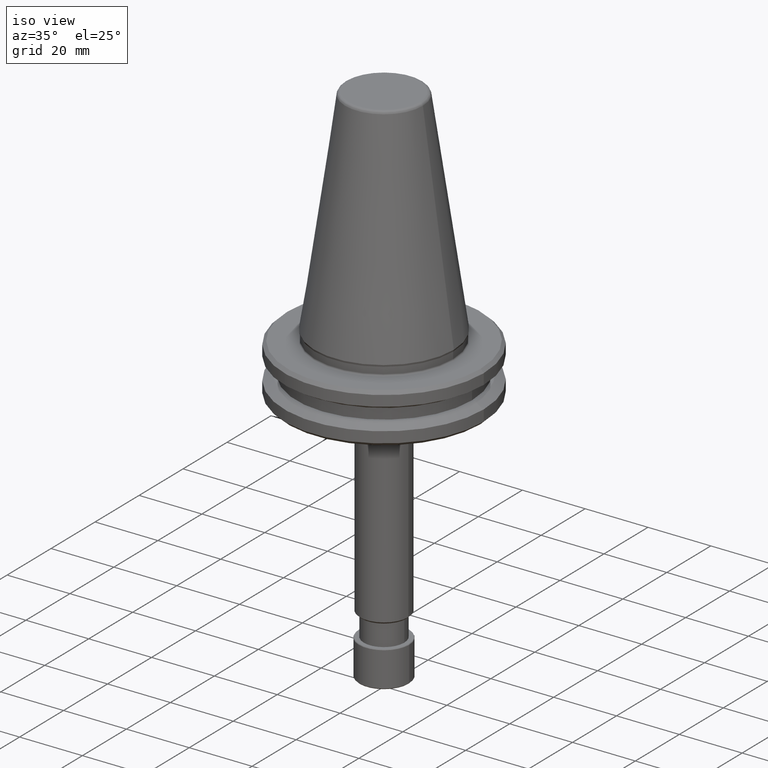
[diagram: clean part render]
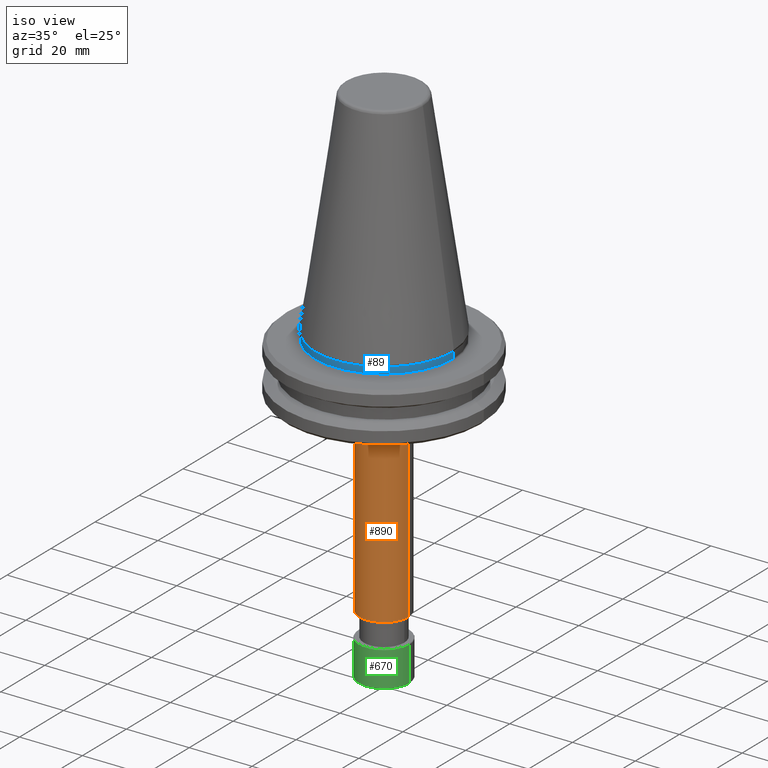
[diagram: same view with three faces highlighted in distinct colors, each labeled with its STEP entity id]
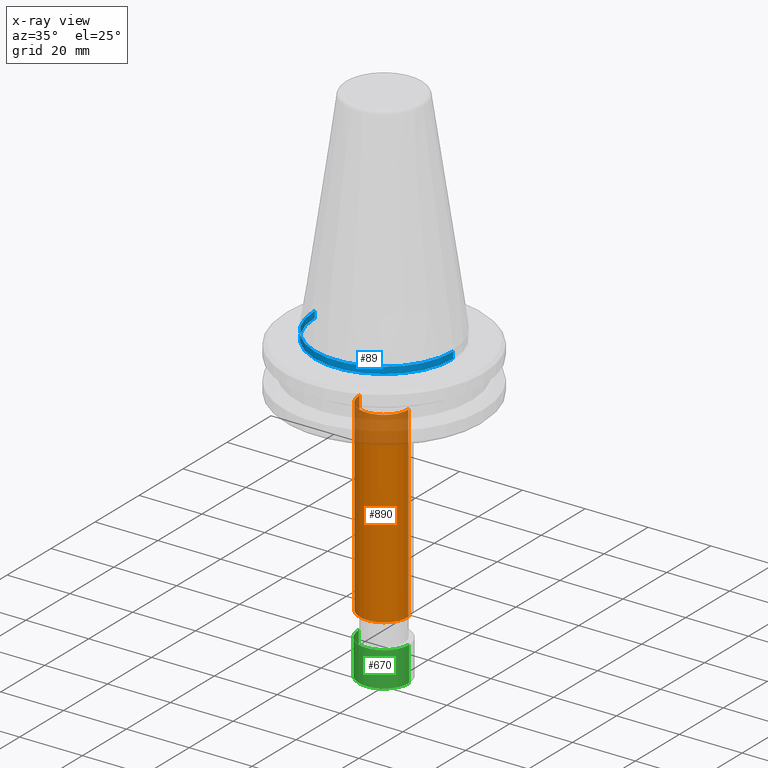
[diagram: x-ray of the same camera — body ghosted, the three highlighted faces saturated]
A machine part, iso view with three faces highlighted in distinct colors.
The next image is the same camera in x-ray (body ghosted, the three faces saturated) — at least one of them is partly hidden behind the body in this view.
Their STEP definitions:

[orange] entity #890 — the highlighted cylindrical surface (edge-blend (fillet) strip) has radius 7.75 mm, axis along (-0, -0, 1).
#54 = DIRECTION ( 'NONE',  ( -0.0000000000000000000, -0.0000000000000000000, 1.000000000000000000 ) ) ;
#76 = AXIS2_PLACEMENT_3D ( 'NONE', #699, #597, #96 ) ;
#83 = VERTEX_POINT ( 'NONE', #1024 ) ;
#87 = DIRECTION ( 'NONE',  ( -0.0000000000000000000, -0.0000000000000000000, 1.000000000000000000 ) ) ;
#96 = DIRECTION ( 'NONE',  ( 1.000000000000000000, 0.0000000000000000000, 0.0000000000000000000 ) ) ;
#105 = CARTESIAN_POINT ( 'NONE',  ( 0.0000000000000000000, 0.0000000000000000000, 72.29999999999947100 ) ) ;
#154 = VERTEX_POINT ( 'NONE', #186 ) ;
#186 = CARTESIAN_POINT ( 'NONE',  ( 7.750000000000034600, 0.0000000000000000000, 12.59999999999989000 ) ) ;
#299 = CARTESIAN_POINT ( 'NONE',  ( 0.0000000000000000000, 0.0000000000000000000, 12.59999999999989000 ) ) ;
#354 = CARTESIAN_POINT ( 'NONE',  ( 7.750000000000034600, 0.0000000000000000000, 72.29999999999947100 ) ) ;
#358 = CARTESIAN_POINT ( 'NONE',  ( 7.750000000000034600, 0.0000000000000000000, 223.7483139439238500 ) ) ;
#359 = ORIENTED_EDGE ( 'NONE', *, *, #946, .T. ) ;
#369 = EDGE_CURVE ( 'NONE', #829, #712, #936, .T. ) ;
#467 = EDGE_CURVE ( 'NONE', #154, #712, #473, .T. ) ;
#473 = LINE ( 'NONE', #358, #503 ) ;
#503 = VECTOR ( 'NONE', #911, 1000.000000000000000 ) ;
#516 = CARTESIAN_POINT ( 'NONE',  ( -7.750000000000034600, 9.491012693392029200E-016, 223.7483139439238500 ) ) ;
#573 = AXIS2_PLACEMENT_3D ( 'NONE', #299, #87, #849 ) ;
#594 = DIRECTION ( 'NONE',  ( -0.0000000000000000000, -0.0000000000000000000, 1.000000000000000000 ) ) ;
#597 = DIRECTION ( 'NONE',  ( -0.0000000000000000000, -0.0000000000000000000, 1.000000000000000000 ) ) ;
#692 = VECTOR ( 'NONE', #594, 1000.000000000000000 ) ;
#699 = CARTESIAN_POINT ( 'NONE',  ( 0.0000000000000000000, 0.0000000000000000000, 223.7483139439238500 ) ) ;
#705 = CIRCLE ( 'NONE', #573, 7.750000000000034600 ) ;
#712 = VERTEX_POINT ( 'NONE', #354 ) ;
#792 = FACE_OUTER_BOUND ( 'NONE', #1106, .T. ) ;
#829 = VERTEX_POINT ( 'NONE', #1182 ) ;
#847 = AXIS2_PLACEMENT_3D ( 'NONE', #105, #54, #1104 ) ;
#849 = DIRECTION ( 'NONE',  ( 1.000000000000000000, 0.0000000000000000000, 0.0000000000000000000 ) ) ;
#890 = ADVANCED_FACE ( 'NONE', ( #792 ), #919, .T. ) ;
#911 = DIRECTION ( 'NONE',  ( -0.0000000000000000000, -0.0000000000000000000, 1.000000000000000000 ) ) ;
#919 = CYLINDRICAL_SURFACE ( 'NONE', #76, 7.750000000000034600 ) ;
#936 = CIRCLE ( 'NONE', #847, 7.750000000000034600 ) ;
#937 = LINE ( 'NONE', #516, #692 ) ;
#946 = EDGE_CURVE ( 'NONE', #83, #154, #705, .T. ) ;
#976 = ORIENTED_EDGE ( 'NONE', *, *, #369, .F. ) ;
#987 = ORIENTED_EDGE ( 'NONE', *, *, #1160, .F. ) ;
#1024 = CARTESIAN_POINT ( 'NONE',  ( -7.750000000000034600, 9.491012693392027200E-016, 12.59999999999989000 ) ) ;
#1104 = DIRECTION ( 'NONE',  ( 1.000000000000000000, 0.0000000000000000000, 0.0000000000000000000 ) ) ;
#1106 = EDGE_LOOP ( 'NONE', ( #987, #359, #1192, #976 ) ) ;
#1160 = EDGE_CURVE ( 'NONE', #83, #829, #937, .T. ) ;
#1182 = CARTESIAN_POINT ( 'NONE',  ( -7.750000000000034600, 9.491012693392029200E-016, 72.29999999999947100 ) ) ;
#1192 = ORIENTED_EDGE ( 'NONE', *, *, #467, .T. ) ;

[blue] entity #89 — the highlighted cylindrical surface (partial cylindrical patch) has radius 22 mm, axis along (-0, -0, 1).
#2 = DIRECTION ( 'NONE',  ( -0.0000000000000000000, -0.0000000000000000000, 1.000000000000000000 ) ) ;
#29 = CARTESIAN_POINT ( 'NONE',  ( -22.00000000000021300, 2.724839128102891800E-015, 90.69999999999994600 ) ) ;
#56 = AXIS2_PLACEMENT_3D ( 'NONE', #285, #2, #317 ) ;
#89 = ADVANCED_FACE ( 'NONE', ( #635 ), #542, .T. ) ;
#113 = EDGE_LOOP ( 'NONE', ( #618, #318, #273, #925 ) ) ;
#114 = AXIS2_PLACEMENT_3D ( 'NONE', #407, #799, #1145 ) ;
#134 = VERTEX_POINT ( 'NONE', #676 ) ;
#235 = AXIS2_PLACEMENT_3D ( 'NONE', #1089, #574, #243 ) ;
#243 = DIRECTION ( 'NONE',  ( 1.000000000000000000, 0.0000000000000000000, 0.0000000000000000000 ) ) ;
#250 = LINE ( 'NONE', #1135, #904 ) ;
#273 = ORIENTED_EDGE ( 'NONE', *, *, #426, .T. ) ;
#285 = CARTESIAN_POINT ( 'NONE',  ( 0.0000000000000000000, 0.0000000000000000000, 223.7483139439238500 ) ) ;
#290 = VERTEX_POINT ( 'NONE', #960 ) ;
#317 = DIRECTION ( 'NONE',  ( 1.000000000000000000, 0.0000000000000000000, 0.0000000000000000000 ) ) ;
#318 = ORIENTED_EDGE ( 'NONE', *, *, #631, .T. ) ;
#319 = EDGE_CURVE ( 'NONE', #290, #1076, #949, .T. ) ;
#341 = DIRECTION ( 'NONE',  ( -0.0000000000000000000, -0.0000000000000000000, 1.000000000000000000 ) ) ;
#379 = VERTEX_POINT ( 'NONE', #29 ) ;
#407 = CARTESIAN_POINT ( 'NONE',  ( 0.0000000000000000000, 0.0000000000000000000, 92.78181758062386600 ) ) ;
#426 = EDGE_CURVE ( 'NONE', #134, #1076, #643, .T. ) ;
#530 = DIRECTION ( 'NONE',  ( -0.0000000000000000000, -0.0000000000000000000, 1.000000000000000000 ) ) ;
#542 = CYLINDRICAL_SURFACE ( 'NONE', #56, 22.00000000000017100 ) ;
#570 = CIRCLE ( 'NONE', #235, 22.00000000000021300 ) ;
#574 = DIRECTION ( 'NONE',  ( -0.0000000000000000000, -0.0000000000000000000, 1.000000000000000000 ) ) ;
#586 = VECTOR ( 'NONE', #530, 1000.000000000000000 ) ;
#618 = ORIENTED_EDGE ( 'NONE', *, *, #1143, .F. ) ;
#631 = EDGE_CURVE ( 'NONE', #379, #134, #570, .T. ) ;
#635 = FACE_OUTER_BOUND ( 'NONE', #113, .T. ) ;
#643 = LINE ( 'NONE', #868, #586 ) ;
#676 = CARTESIAN_POINT ( 'NONE',  ( 22.00000000000021300, 0.0000000000000000000, 90.69999999999994600 ) ) ;
#799 = DIRECTION ( 'NONE',  ( -0.0000000000000000000, -0.0000000000000000000, 1.000000000000000000 ) ) ;
#868 = CARTESIAN_POINT ( 'NONE',  ( 22.00000000000017100, 0.0000000000000000000, 223.7483139439238500 ) ) ;
#904 = VECTOR ( 'NONE', #341, 1000.000000000000000 ) ;
#925 = ORIENTED_EDGE ( 'NONE', *, *, #319, .F. ) ;
#949 = CIRCLE ( 'NONE', #114, 22.00000000000013100 ) ;
#960 = CARTESIAN_POINT ( 'NONE',  ( -22.00000000000013100, 2.694222958124195300E-015, 92.78181758062386600 ) ) ;
#1076 = VERTEX_POINT ( 'NONE', #1082 ) ;
#1082 = CARTESIAN_POINT ( 'NONE',  ( 22.00000000000013100, 0.0000000000000000000, 92.78181758062386600 ) ) ;
#1089 = CARTESIAN_POINT ( 'NONE',  ( 0.0000000000000000000, 0.0000000000000000000, 90.69999999999994600 ) ) ;
#1135 = CARTESIAN_POINT ( 'NONE',  ( -22.00000000000017100, 2.694222958124198100E-015, 223.7483139439238500 ) ) ;
#1143 = EDGE_CURVE ( 'NONE', #379, #290, #250, .T. ) ;
#1145 = DIRECTION ( 'NONE',  ( 1.000000000000000000, 0.0000000000000000000, 0.0000000000000000000 ) ) ;

[green] entity #670 — the highlighted cylindrical surface (edge-blend (fillet) strip) has radius 8 mm, axis along (-0, -0, 1).
#60 = CARTESIAN_POINT ( 'NONE',  ( 8.000000000000007100, 0.0000000000000000000, 185.3618079967774900 ) ) ;
#147 = CARTESIAN_POINT ( 'NONE',  ( 0.0000000000000000000, 0.0000000000000000000, 185.3618079967774900 ) ) ;
#173 = CYLINDRICAL_SURFACE ( 'NONE', #353, 8.000000000000007100 ) ;
#181 = CARTESIAN_POINT ( 'NONE',  ( -8.000000000000007100, 9.797174393178835500E-016, 185.3618079967774900 ) ) ;
#200 = CIRCLE ( 'NONE', #214, 8.000000000000007100 ) ;
#214 = AXIS2_PLACEMENT_3D ( 'NONE', #941, #340, #492 ) ;
#307 = VECTOR ( 'NONE', #321, 1000.000000000000000 ) ;
#321 = DIRECTION ( 'NONE',  ( -0.0000000000000000000, -0.0000000000000000000, 1.000000000000000000 ) ) ;
#329 = DIRECTION ( 'NONE',  ( -0.0000000000000000000, -0.0000000000000000000, 1.000000000000000000 ) ) ;
#340 = DIRECTION ( 'NONE',  ( -0.0000000000000000000, -0.0000000000000000000, 1.000000000000000000 ) ) ;
#348 = EDGE_CURVE ( 'NONE', #1006, #879, #982, .T. ) ;
#353 = AXIS2_PLACEMENT_3D ( 'NONE', #147, #1080, #1063 ) ;
#396 = ORIENTED_EDGE ( 'NONE', *, *, #348, .F. ) ;
#471 = LINE ( 'NONE', #60, #307 ) ;
#492 = DIRECTION ( 'NONE',  ( 1.000000000000000000, 0.0000000000000000000, 0.0000000000000000000 ) ) ;
#495 = EDGE_CURVE ( 'NONE', #811, #1125, #200, .T. ) ;
#661 = CARTESIAN_POINT ( 'NONE',  ( 8.000000000000007100, 0.0000000000000000000, 4.710681894100011000 ) ) ;
#670 = ADVANCED_FACE ( 'NONE', ( #1000 ), #173, .T. ) ;
#698 = ORIENTED_EDGE ( 'NONE', *, *, #495, .T. ) ;
#754 = DIRECTION ( 'NONE',  ( -0.0000000000000000000, -0.0000000000000000000, 1.000000000000000000 ) ) ;
#811 = VERTEX_POINT ( 'NONE', #907 ) ;
#855 = VECTOR ( 'NONE', #754, 1000.000000000000000 ) ;
#862 = EDGE_LOOP ( 'NONE', ( #963, #698, #1152, #396 ) ) ;
#879 = VERTEX_POINT ( 'NONE', #661 ) ;
#884 = EDGE_CURVE ( 'NONE', #811, #1006, #1087, .T. ) ;
#907 = CARTESIAN_POINT ( 'NONE',  ( -8.000000000000007100, 9.797174393178833500E-016, -6.334513274300013200 ) ) ;
#917 = AXIS2_PLACEMENT_3D ( 'NONE', #1119, #329, #1164 ) ;
#941 = CARTESIAN_POINT ( 'NONE',  ( 0.0000000000000000000, 0.0000000000000000000, -6.334513274300013200 ) ) ;
#963 = ORIENTED_EDGE ( 'NONE', *, *, #884, .F. ) ;
#979 = CARTESIAN_POINT ( 'NONE',  ( 8.000000000000007100, 0.0000000000000000000, -6.334513274300013200 ) ) ;
#982 = CIRCLE ( 'NONE', #917, 8.000000000000007100 ) ;
#1000 = FACE_OUTER_BOUND ( 'NONE', #862, .T. ) ;
#1006 = VERTEX_POINT ( 'NONE', #1008 ) ;
#1008 = CARTESIAN_POINT ( 'NONE',  ( -8.000000000000007100, 9.797174393178835500E-016, 4.710681894100011000 ) ) ;
#1032 = EDGE_CURVE ( 'NONE', #1125, #879, #471, .T. ) ;
#1063 = DIRECTION ( 'NONE',  ( 1.000000000000000000, 0.0000000000000000000, 0.0000000000000000000 ) ) ;
#1080 = DIRECTION ( 'NONE',  ( -0.0000000000000000000, -0.0000000000000000000, 1.000000000000000000 ) ) ;
#1087 = LINE ( 'NONE', #181, #855 ) ;
#1119 = CARTESIAN_POINT ( 'NONE',  ( 0.0000000000000000000, 0.0000000000000000000, 4.710681894100011000 ) ) ;
#1125 = VERTEX_POINT ( 'NONE', #979 ) ;
#1152 = ORIENTED_EDGE ( 'NONE', *, *, #1032, .T. ) ;
#1164 = DIRECTION ( 'NONE',  ( 1.000000000000000000, 0.0000000000000000000, 0.0000000000000000000 ) ) ;